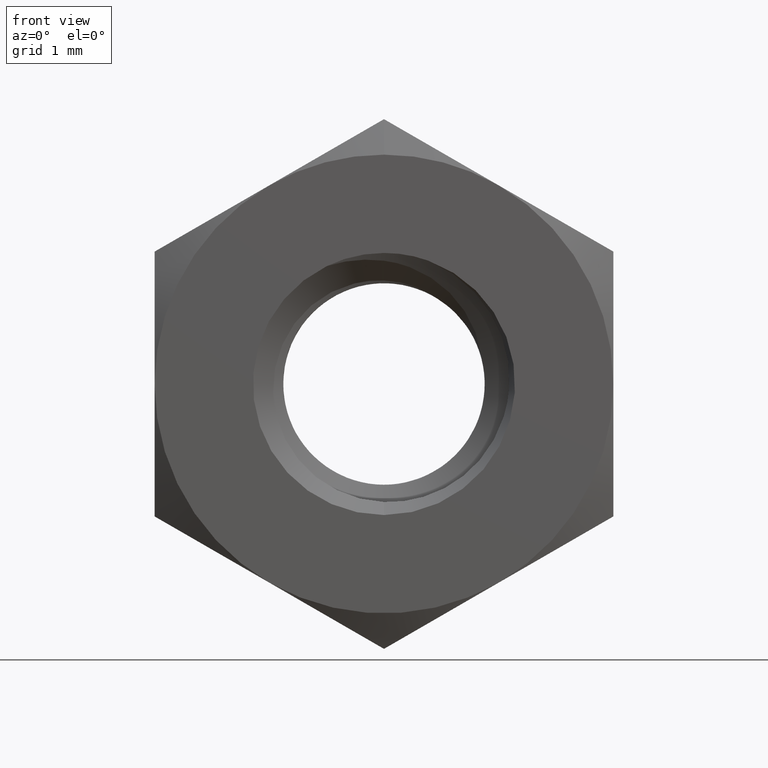
[diagram: clean part render]
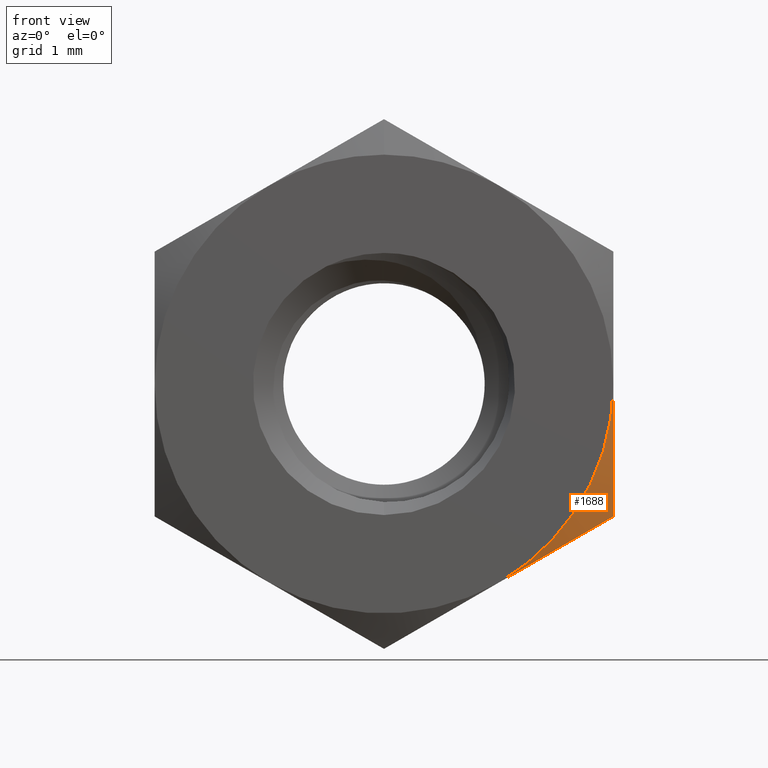
[diagram: same view with one face highlighted and labeled with its STEP entity id]
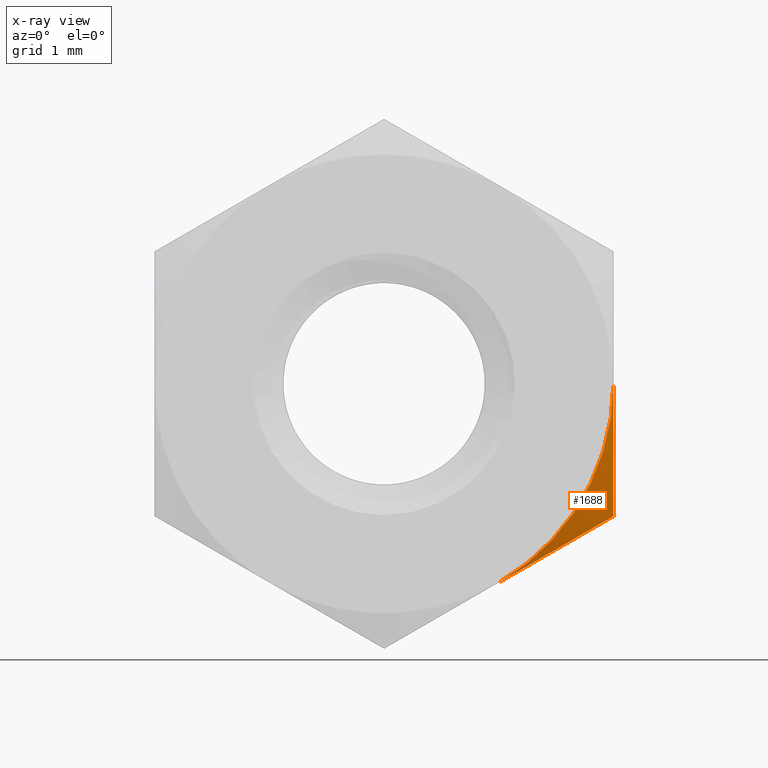
[diagram: x-ray of the same camera — body ghosted, the highlighted face saturated]
A machine part, front view. The second image highlights one B-rep face of the part: STEP entity #1688.
The next image is the same camera in x-ray: the body ghosted, the highlighted face saturated — about 0% of this face is hidden behind the body in this view.
In plain terms, the highlighted conical surface has half-angle 60 deg.
Its self-contained STEP definition (entity closure, byte-faithful):
#76 = CARTESIAN_POINT ( 'NONE',  ( 1.750000000000001800, -1.600000000000000100, -3.031088913245536100 ) ) ;
#135 = ORIENTED_EDGE ( 'NONE', *, *, #617, .F. ) ;
#171 = CARTESIAN_POINT ( 'NONE',  ( 3.500000000000001300, -1.600000000000000100, -1.502314598737158200E-015 ) ) ;
#319 = AXIS2_PLACEMENT_3D ( 'NONE', #651, #1731, #803 ) ;
#327 = CARTESIAN_POINT ( 'NONE',  ( 3.499999999999998200, -1.600000000000002800, -0.3420461485635049000 ) ) ;
#375 = ORIENTED_EDGE ( 'NONE', *, *, #1104, .F. ) ;
#509 = CARTESIAN_POINT ( 'NONE',  ( 3.499999999999996000, -1.287392608830353800, -2.020725942163716900 ) ) ;
#582 = ORIENTED_EDGE ( 'NONE', *, *, #1211, .F. ) ;
#617 = EDGE_CURVE ( 'NONE', #670, #1001, #1627, .T. ) ;
#651 = CARTESIAN_POINT ( 'NONE',  ( 0.0000000000000000000, -1.600000000000000100, 0.0000000000000000000 ) ) ;
#670 = VERTEX_POINT ( 'NONE', #1693 ) ;
#795 = CARTESIAN_POINT ( 'NONE',  ( 1.750000000000001800, -1.600000000000000100, -3.031088913245536100 ) ) ;
#803 = DIRECTION ( 'NONE',  ( 0.0000000000000000000, 0.0000000000000000000, 1.000000000000000000 ) ) ;
#848 = CARTESIAN_POINT ( 'NONE',  ( 0.0000000000000000000, -1.600000000000000100, 0.0000000000000000000 ) ) ;
#893 = AXIS2_PLACEMENT_3D ( 'NONE', #848, #1060, #1949 ) ;
#967 = CARTESIAN_POINT ( 'NONE',  ( 3.499999999999996000, -1.287392608830353800, -2.020725942163716900 ) ) ;
#1001 = VERTEX_POINT ( 'NONE', #1939 ) ;
#1024 = EDGE_LOOP ( 'NONE', ( #582, #375, #135 ) ) ;
#1060 = DIRECTION ( 'NONE',  ( -0.0000000000000000000, -1.000000000000000000, 0.0000000000000000000 ) ) ;
#1104 = EDGE_CURVE ( 'NONE', #1001, #1616, #1649, .T. ) ;
#1129 = CARTESIAN_POINT ( 'NONE',  ( 3.499999999999996400, -1.461860585609731100, -1.355280572397303400 ) ) ;
#1211 = EDGE_CURVE ( 'NONE', #1616, #670, #1856, .T. ) ;
#1299 = CARTESIAN_POINT ( 'NONE',  ( 2.927447417349535700, -1.478243469714881600, -2.351289329882175800 ) ) ;
#1439 = CARTESIAN_POINT ( 'NONE',  ( 3.499999999999996900, -1.570560040290959400, -0.6813422211604707200 ) ) ;
#1610 = CONICAL_SURFACE ( 'NONE', #319, 3.500000000000001300, 1.047197551196600100 ) ;
#1616 = VERTEX_POINT ( 'NONE', #795 ) ;
#1627 = B_SPLINE_CURVE_WITH_KNOTS ( 'NONE', 3,
 ( #171, #327, #1439, #1129, #1740, #967 ),
 .UNSPECIFIED., .F., .F.,
 ( 4, 2, 4 ),
 ( 0.01298168697682230500, 0.01400405614601536200, 0.01502642531520842000 ),
 .UNSPECIFIED. ) ;
#1649 = B_SPLINE_CURVE_WITH_KNOTS ( 'NONE', 3,
 ( #509, #1299, #1937, #76 ),
 .UNSPECIFIED., .F., .F.,
 ( 4, 4 ),
 ( 2.380739282167226700E-007, 0.002044882221487510700 ),
 .UNSPECIFIED. ) ;
#1688 = ADVANCED_FACE ( 'NONE', ( #1879 ), #1610, .T. ) ;
#1693 = CARTESIAN_POINT ( 'NONE',  ( 3.500000000000001300, -1.600000000000000100, -1.502314598737158200E-015 ) ) ;
#1731 = DIRECTION ( 'NONE',  ( 0.0000000000000000000, 1.000000000000000000, 0.0000000000000000000 ) ) ;
#1740 = CARTESIAN_POINT ( 'NONE',  ( 3.499999999999995600, -1.382421078745973900, -1.691537666044970600 ) ) ;
#1856 = CIRCLE ( 'NONE', #893, 3.500000000000001300 ) ;
#1879 = FACE_OUTER_BOUND ( 'NONE', #1024, .T. ) ;
#1937 = CARTESIAN_POINT ( 'NONE',  ( 2.346298152288375200, -1.599999999999990500, -2.686816014504590300 ) ) ;
#1939 = CARTESIAN_POINT ( 'NONE',  ( 3.499999999999996000, -1.287392608830353800, -2.020725942163716900 ) ) ;
#1949 = DIRECTION ( 'NONE',  ( -1.776356839400250500E-015, 0.0000000000000000000, 1.000000000000000000 ) ) ;